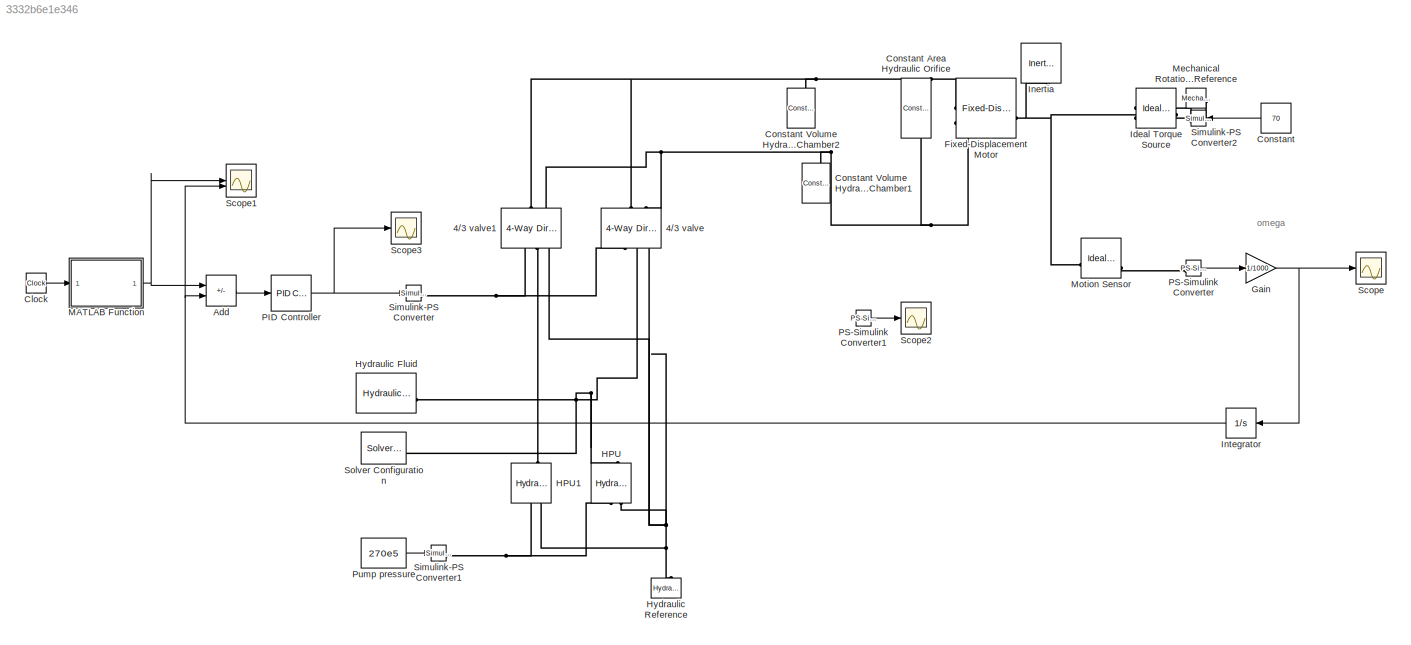
MODEL slx_3332b6e1e346
KIND model
CONFIG AbsTol = auto
CONFIG EnableMultiTasking = off
CONFIG FixedStep = auto
CONFIG MaxStep = auto
CONFIG MinStep = auto
CONFIG RelTol = 1e-3
CONFIG SampleTimeConstraint = Unconstrained
CONFIG SolverName = VariableStepAuto
CONFIG StartTime = 0.0
CONFIG StopTime = 20
WORKSPACE source: MATLAB code (in-file)
WORKSPACE rho = 850
WORKSPACE P_r = 270e5  (= 27000000)
WORKSPACE Cd = 0.7
WORKSPACE Q_r = 200/6e4  (= 0.00333333333333)
WORKSPACE AdMax = Q_r/Cd/sqrt(2/rho*P_r/2)
WORKSPACE g = 9.81
WORKSPACE zw = 0.8
WORKSPACE tw = 10
WORKSPACE ig = 46
WORKSPACE m = 9000
WORKSPACE mueq = 0.15
WORKSPACE dd = 0.45
WORKSPACE nyv = 0.92
WORKSPACE rd = dd/2  (= 0.225)
WORKSPACE omega0 = 5
WORKSPACE omegap = 1500
WORKSPACE nsh = 3
WORKSPACE gearrationsh = nsh.*2
WORKSPACE Jeff = 0.5
BLOCK [Reference] 4//3 valve  REF=sh_lib/Valves/Directional Valves/4-Way Directional
Valve
  NameLocation = right
  SourceBlock = sh_lib/Valves/Directional Valves/4-Way Directional\nValve
  SourceType = 4-Way Directional\nValve
BLOCK [Reference] 4//3 valve1  REF=sh_lib/Valves/Directional Valves/4-Way Directional
Valve
  NameLocation = right
  SourceBlock = sh_lib/Valves/Directional Valves/4-Way Directional\nValve
  SourceType = 4-Way Directional\nValve
BLOCK [Sum] Add
  IconShape = rectangular
  Inputs = +-
BLOCK [Clock] Clock
BLOCK [Constant] Constant
  Value = 70
BLOCK [Reference] Constant Area Hydraulic Orifice  REF=fl_lib/Hydraulic/Hydraulic Elements/Constant Area
Hydraulic Orifice
  NameLocation = left
  SourceBlock = fl_lib/Hydraulic/Hydraulic Elements/Constant Area\nHydraulic Orifice
  SourceType = Constant Area\nHydraulic Orifice
BLOCK [Reference] Constant Volume Hydraulic Chamber1  REF=fl_lib/Hydraulic/Hydraulic Elements/Constant Volume
Hydraulic Chamber
  NameLocation = right
  SourceBlock = fl_lib/Hydraulic/Hydraulic Elements/Constant Volume\nHydraulic Chamber
  SourceType = Constant Volume\nHydraulic Chamber
BLOCK [Reference] Constant Volume Hydraulic Chamber2  REF=fl_lib/Hydraulic/Hydraulic Elements/Constant Volume
Hydraulic Chamber
  NameLocation = right
  SourceBlock = fl_lib/Hydraulic/Hydraulic Elements/Constant Volume\nHydraulic Chamber
  SourceType = Constant Volume\nHydraulic Chamber
BLOCK [Reference] Fixed-Displacement Motor  REF=sh_lib/Pumps and Motors/Fixed-Displacement
Motor
  SourceBlock = sh_lib/Pumps and Motors/Fixed-Displacement\nMotor
  SourceType = Fixed-Displacement\nMotor
BLOCK [Gain] Gain
  Gain = 1/1000
BLOCK [Reference] HPU  REF=fl_lib/Hydraulic/Hydraulic Sources/Hydraulic Pressure
Source
  NameLocation = right
  SourceBlock = fl_lib/Hydraulic/Hydraulic Sources/Hydraulic Pressure\nSource
  SourceType = Hydraulic Pressure\nSource
BLOCK [Reference] HPU1  REF=fl_lib/Hydraulic/Hydraulic Sources/Hydraulic Pressure
Source
  NameLocation = right
  SourceBlock = fl_lib/Hydraulic/Hydraulic Sources/Hydraulic Pressure\nSource
  SourceType = Hydraulic Pressure\nSource
BLOCK [Reference] Hydraulic Fluid  REF=sh_lib/Hydraulic Utilities/Hydraulic Fluid
  SourceBlock = sh_lib/Hydraulic Utilities/Hydraulic Fluid
  SourceType = Hydraulic Fluid
BLOCK [Reference] Hydraulic Reference  REF=fl_lib/Hydraulic/Hydraulic Elements/Hydraulic Reference
  NameLocation = right
  SourceBlock = fl_lib/Hydraulic/Hydraulic Elements/Hydraulic Reference
  SourceType = Hydraulic Reference
BLOCK [Reference] Ideal Torque Source  REF=fl_lib/Mechanical/Mechanical Sources/Ideal Torque Source
  NameLocation = top
  SourceBlock = fl_lib/Mechanical/Mechanical Sources/Ideal Torque Source
  SourceType = Ideal Torque Source
BLOCK [Reference] Inertia  REF=fl_lib/Mechanical/Rotational Elements/Inertia
  NameLocation = left
  SourceBlock = fl_lib/Mechanical/Rotational Elements/Inertia
  SourceType = Inertia
  Tag = Factory Generic
BLOCK [Integrator] Integrator
  NameLocation = top
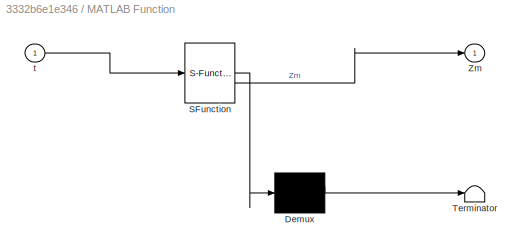
BLOCK [SubSystem] MATLAB Function
  ErrorFcn = Stateflow.Translate.translate
  LibrarySourceBlock = simulink/User-Defined\nFunctions/MATLAB Function
  PermitHierarchicalResolution = ExplicitOnly
  SFBlockType = MATLAB Function
  TreatAsAtomicUnit = on
BLOCK [Demux] MATLAB Function/ Demux 
  Outputs = 1
BLOCK [S-Function] MATLAB Function/ SFunction 
  EnableBusSupport = on
  FunctionName = sf_sfun
  PortCounts = [1 2]
  SFcnIsStateOwnerBlock = off
  SFunctionDeploymentMode = off
  Tag = Stateflow S-Function 2
BLOCK [Terminator] MATLAB Function/ Terminator 
BLOCK [Outport] MATLAB Function/Zm
BLOCK [Inport] MATLAB Function/t
BLOCK [Reference] Mechanical Rotational Reference  REF=fl_lib/Mechanical/Rotational Elements/Mechanical
Rotational Reference
  NameLocation = top
  SourceBlock = fl_lib/Mechanical/Rotational Elements/Mechanical\nRotational Reference
  SourceType = Mechanical\nRotational Reference
BLOCK [Reference] Motion Sensor  REF=fl_lib/Mechanical/Mechanical Sensors/Ideal Rotational
Motion Sensor
  SourceBlock = fl_lib/Mechanical/Mechanical Sensors/Ideal Rotational\nMotion Sensor
  SourceType = Ideal Rotational\nMotion Sensor
  Tag = Factory Generic
BLOCK [Reference] PID Controller  REF=slpidlib/PID Controller
  LibrarySourceBlock = simulink/Continuous/PID Controller
  SourceBlock = slpidlib/PID Controller
  SourceType = PID 1dof
BLOCK [Reference] PS-Simulink Converter  REF=nesl_utility/PS-Simulink
Converter
  SourceBlock = nesl_utility/PS-Simulink\nConverter
  SourceType = PS-Simulink\nConverter
BLOCK [Reference] PS-Simulink Converter1  REF=nesl_utility/PS-Simulink
Converter
  SourceBlock = nesl_utility/PS-Simulink\nConverter
  SourceType = PS-Simulink\nConverter
BLOCK [Constant] Pump pressure
  Value = 270e5
BLOCK [Scope] Scope
  Floating = off
  NumInputPorts = 1
  ScopeSpecificationString = Simulink.scopes.TimeScopeBlockCfg('CurrentConfiguration', extmgr.ConfigurationSet(extmgr.Configuration('Core','General UI',true),extmgr.Configuration('Core','Source UI',true),extmgr.Configuration('Sources','WiredSimulink',true),extmgr.Configuration('Visuals','Time Domain',true,'SerializedDisplays',{struct('MinYLimReal','-0.84279','MaxYLimReal','1.56977','YLabelReal','','MinYLimMag','0.00000','MaxY...<+1376ch>
BLOCK [Scope] Scope1
  Floating = off
  NumInputPorts = 2
  ScopeSpecificationString = Simulink.scopes.TimeScopeBlockCfg('CurrentConfiguration', extmgr.ConfigurationSet(extmgr.Configuration('Core','General UI',true),extmgr.Configuration('Core','Source UI',true),extmgr.Configuration('Sources','WiredSimulink',true,'DataLoggingVariableName','ScopeData1'),extmgr.Configuration('Visuals','Time Domain',true,'SerializedDisplays',{struct('MinYLimReal','-1.00391','MaxYLimReal','1.00092','YLab...<+1461ch>
BLOCK [Scope] Scope2
  Floating = off
  NumInputPorts = 1
  ScopeSpecificationString = Simulink.scopes.TimeScopeBlockCfg('CurrentConfiguration', extmgr.ConfigurationSet(extmgr.Configuration('Core','General UI',true),extmgr.Configuration('Core','Source UI',true),extmgr.Configuration('Sources','WiredSimulink',true,'DataLoggingVariableName','ScopeData2'),extmgr.Configuration('Visuals','Time Domain',true,'SerializedDisplays',{struct('MinYLimReal','-1687499.15217','MaxYLimReal','15187492...<+1464ch>
BLOCK [Scope] Scope3
  Floating = off
  NumInputPorts = 1
  ScopeSpecificationString = Simulink.scopes.TimeScopeBlockCfg('CurrentConfiguration', extmgr.ConfigurationSet(extmgr.Configuration('Core','General UI',true),extmgr.Configuration('Core','Source UI',true),extmgr.Configuration('Sources','WiredSimulink',true,'DataLoggingVariableName','ScopeData3'),extmgr.Configuration('Visuals','Time Domain',true,'SerializedDisplays',{struct('MinYLimReal','-4.01772','MaxYLimReal','1.13148','YLab...<+1422ch>
BLOCK [Reference] Simulink-PS Converter  REF=nesl_utility/Simulink-PS
Converter
  SourceBlock = nesl_utility/Simulink-PS\nConverter
  SourceType = Simulink-PS\nConverter
BLOCK [Reference] Simulink-PS Converter1  REF=nesl_utility/Simulink-PS
Converter
  SourceBlock = nesl_utility/Simulink-PS\nConverter
  SourceType = Simulink-PS\nConverter
BLOCK [Reference] Simulink-PS Converter2  REF=nesl_utility/Simulink-PS
Converter
  NameLocation = top
  SourceBlock = nesl_utility/Simulink-PS\nConverter
  SourceType = Simulink-PS\nConverter
BLOCK [Reference] Solver Configuration  REF=nesl_utility/Solver
Configuration
  SourceBlock = nesl_utility/Solver\nConfiguration
  SourceType = Solver\nConfiguration
ANNOTATION (root): omega
LINE Add:1 -> PID Controller:1
LINE Clock:1 -> MATLAB Function:1
LINE Constant:1 -> Simulink-PS Converter2:1
NET Gain:1 -> Integrator:1, Scope:1
NET Integrator:1 -> Add:2, Scope1:2
NET MATLAB Function:1 -> Add:1, Scope1:1
NET PID Controller:1 -> Scope3:1, Simulink-PS Converter:1
LINE PS-Simulink Converter1:1 -> Scope2:1
LINE PS-Simulink Converter:1 -> Gain:1
LINE Pump pressure:1 -> Simulink-PS Converter1:1
PNET net1: 4//3 valve1:LConn1 -- 4//3 valve:LConn1 -- Constant Area Hydraulic Orifice:LConn1 -- Constant Volume Hydraulic Chamber2:LConn1 -- Fixed-Displacement Motor:LConn1
PNET net2: 4//3 valve1:LConn2 -- 4//3 valve:LConn2 -- Constant Area Hydraulic Orifice:RConn1 -- Constant Volume Hydraulic Chamber1:LConn1 -- Fixed-Displacement Motor:LConn2
PNET net3: 4//3 valve1:RConn1 -- 4//3 valve:RConn1 -- Simulink-PS Converter:RConn1
PLINE 4//3 valve1:RConn2 -- HPU1:LConn1
PNET net4: 4//3 valve1:RConn3 -- 4//3 valve:RConn3 -- HPU1:RConn2 -- HPU:RConn2 -- Hydraulic Reference:LConn1
PNET net5: 4//3 valve:RConn2 -- HPU:LConn1 -- Hydraulic Fluid:RConn1 -- Solver Configuration:RConn1
PNET net6: Fixed-Displacement Motor:RConn1 -- Ideal Torque Source:LConn1 -- Inertia:LConn1 -- Motion Sensor:LConn1
PNET net7: HPU1:RConn1 -- HPU:RConn1 -- Simulink-PS Converter1:RConn1
PLINE Ideal Torque Source:RConn1 -- Simulink-PS Converter2:RConn1
PLINE Ideal Torque Source:RConn2 -- Mechanical Rotational Reference:LConn1
PLINE Motion Sensor:RConn2 -- PS-Simulink Converter:LConn1
note: NET lines group one-source signal fan-out (src -> all destinations, sorted); 1:1 wires keep LINE; PNET lines group multi-terminal physical nets as a canonical sorted terminal list (undirected conserving connections); 2-terminal nets keep the pairwise PLINE form
CHART MATLAB Function states=1 transitions=1
  STATE_LABEL 'eML_blk_kernel()'
  STATE_LABEL 'SCRIPT:\nfunction Zm = fcn(t)\n\nZm = -0.8*sin((pi)/5 * t);\ny = Zm;\n'
CHART  states=0 transitions=0
